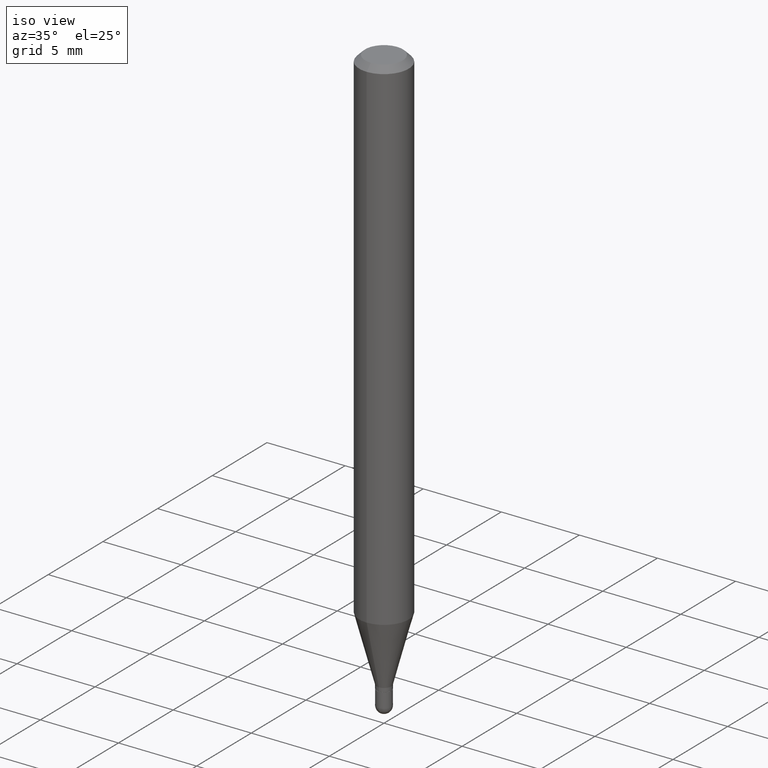
[diagram: clean part render]
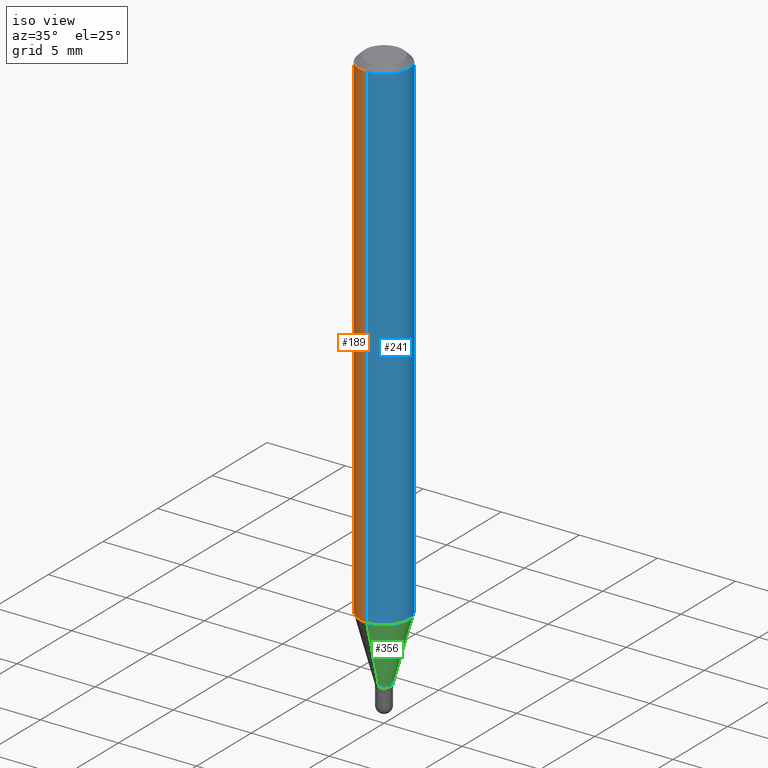
[diagram: same view with three faces highlighted in distinct colors, each labeled with its STEP entity id]
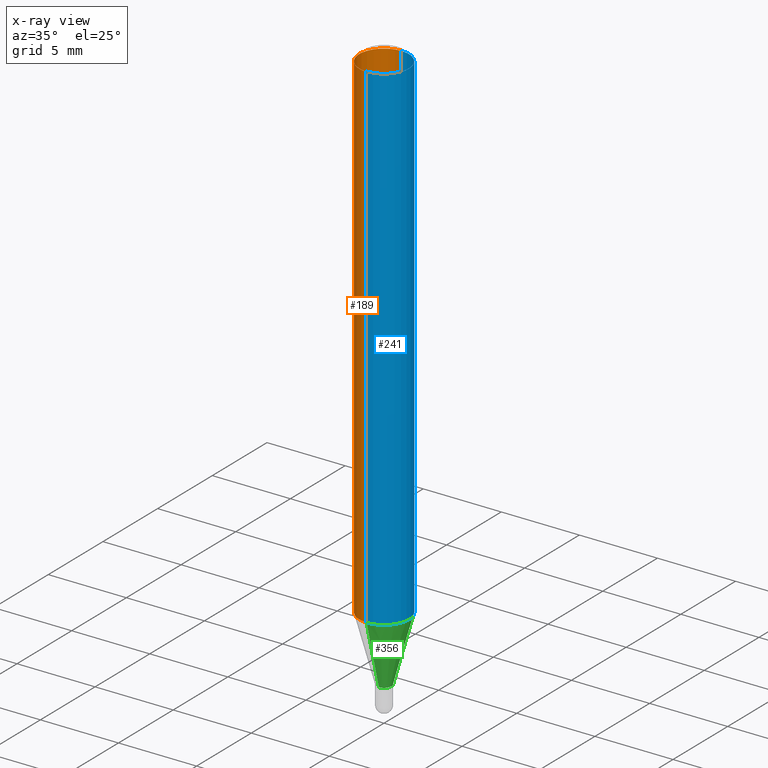
[diagram: x-ray of the same camera — body ghosted, the three highlighted faces saturated]
A machine part, iso view with three faces highlighted in distinct colors.
The next image is the same camera in x-ray (body ghosted, the three faces saturated) — at least one of them is partly hidden behind the body in this view.
Their STEP definitions:

[orange] entity #189 — the highlighted cylindrical surface (edge-blend (fillet) strip) has radius 1.5875 mm, axis along (-0, 0, 1).
#10 = VERTEX_POINT ( 'NONE', #57 ) ;
#57 = CARTESIAN_POINT ( 'NONE',  ( -4.364351673553912750E-16, -0.06250000000000005551, -0.01499999999999979128 ) ) ;
#72 = CARTESIAN_POINT ( 'NONE',  ( 4.440892098500937762E-16, 0.06249999999999993755, -0.01500000000000022669 ) ) ;
#75 = DIRECTION ( 'NONE',  ( -2.445484048547130509E-29, 3.491459510913228997E-15, 1.000000000000000000 ) ) ;
#77 = DIRECTION ( 'NONE',  ( -2.445484048547130229E-29, 3.491459510913228997E-15, 1.000000000000000000 ) ) ;
#101 = LINE ( 'NONE', #268, #104 ) ;
#104 = VECTOR ( 'NONE', #426, 39.37007874015748143 ) ;
#118 = CARTESIAN_POINT ( 'NONE',  ( -4.364351673553916201E-16, -0.06250000000000000000, 2.182162194320768123E-16 ) ) ;
#122 = ORIENTED_EDGE ( 'NONE', *, *, #134, .T. ) ;
#125 = CARTESIAN_POINT ( 'NONE',  ( 3.668226072820698461E-31, -5.237189266369846700E-17, -0.01500000000000000812 ) ) ;
#134 = EDGE_CURVE ( 'NONE', #353, #280, #298, .T. ) ;
#183 = CARTESIAN_POINT ( 'NONE',  ( -4.364351673553607559E-16, -0.06250000000000444089, -1.269789764466969340 ) ) ;
#187 = EDGE_CURVE ( 'NONE', #353, #243, #101, .T. ) ;
#189 = ADVANCED_FACE ( 'NONE', ( #270 ), #347, .T. ) ;
#202 = EDGE_LOOP ( 'NONE', ( #371, #122, #406, #400 ) ) ;
#231 = LINE ( 'NONE', #118, #283 ) ;
#237 = AXIS2_PLACEMENT_3D ( 'NONE', #257, #336, #290 ) ;
#243 = VERTEX_POINT ( 'NONE', #72 ) ;
#257 = CARTESIAN_POINT ( 'NONE',  ( 3.105250614012392213E-29, -4.433419550008470244E-15, -1.269789764466969562 ) ) ;
#266 = AXIS2_PLACEMENT_3D ( 'NONE', #125, #75, #339 ) ;
#268 = CARTESIAN_POINT ( 'NONE',  ( 4.440892098500625669E-16, 0.06250000000000000000, -2.182162194320768123E-16 ) ) ;
#270 = FACE_OUTER_BOUND ( 'NONE', #202, .T. ) ;
#280 = VERTEX_POINT ( 'NONE', #183 ) ;
#283 = VECTOR ( 'NONE', #77, 39.37007874015748143 ) ;
#290 = DIRECTION ( 'NONE',  ( -6.982962677686265922E-15, -1.000000000000000000, 4.370956789862821150E-15 ) ) ;
#298 = CIRCLE ( 'NONE', #237, 0.06250000000000000000 ) ;
#336 = DIRECTION ( 'NONE',  ( -2.445484048547130509E-29, 3.491459510913228997E-15, 1.000000000000000000 ) ) ;
#339 = DIRECTION ( 'NONE',  ( -6.982962677686265922E-15, -1.000000000000000000, 3.483106191921935554E-15 ) ) ;
#347 = CYLINDRICAL_SURFACE ( 'NONE', #412, 0.06250000000000000000 ) ;
#353 = VERTEX_POINT ( 'NONE', #439 ) ;
#371 = ORIENTED_EDGE ( 'NONE', *, *, #187, .F. ) ;
#381 = DIRECTION ( 'NONE',  ( -6.982962677686265922E-15, -1.000000000000000000, 3.491459510913228997E-15 ) ) ;
#400 = ORIENTED_EDGE ( 'NONE', *, *, #470, .F. ) ;
#406 = ORIENTED_EDGE ( 'NONE', *, *, #407, .T. ) ;
#407 = EDGE_CURVE ( 'NONE', #280, #10, #231, .T. ) ;
#412 = AXIS2_PLACEMENT_3D ( 'NONE', #504, #459, #381 ) ;
#426 = DIRECTION ( 'NONE',  ( -2.445484048547130229E-29, 3.491459510913228997E-15, 1.000000000000000000 ) ) ;
#439 = CARTESIAN_POINT ( 'NONE',  ( 4.440892098500933817E-16, 0.06249999999999555217, -1.269789764466970006 ) ) ;
#459 = DIRECTION ( 'NONE',  ( -2.445484048547130509E-29, 3.491459510913228997E-15, 1.000000000000000000 ) ) ;
#470 = EDGE_CURVE ( 'NONE', #243, #10, #496, .T. ) ;
#496 = CIRCLE ( 'NONE', #266, 0.06250000000000000000 ) ;
#504 = CARTESIAN_POINT ( 'NONE',  ( 0.000000000000000000, 0.000000000000000000, 0.000000000000000000 ) ) ;

[blue] entity #241 — the highlighted cylindrical surface (edge-blend (fillet) strip) has radius 1.5875 mm, axis along (-0, 0, 1).
#6 = ORIENTED_EDGE ( 'NONE', *, *, #407, .F. ) ;
#10 = VERTEX_POINT ( 'NONE', #57 ) ;
#22 = DIRECTION ( 'NONE',  ( -2.445484048547130509E-29, 3.491459510913228997E-15, 1.000000000000000000 ) ) ;
#35 = CARTESIAN_POINT ( 'NONE',  ( 0.000000000000000000, 0.000000000000000000, 0.000000000000000000 ) ) ;
#57 = CARTESIAN_POINT ( 'NONE',  ( -4.364351673553912750E-16, -0.06250000000000005551, -0.01499999999999979128 ) ) ;
#72 = CARTESIAN_POINT ( 'NONE',  ( 4.440892098500937762E-16, 0.06249999999999993755, -0.01500000000000022669 ) ) ;
#77 = DIRECTION ( 'NONE',  ( -2.445484048547130229E-29, 3.491459510913228997E-15, 1.000000000000000000 ) ) ;
#101 = LINE ( 'NONE', #268, #104 ) ;
#104 = VECTOR ( 'NONE', #426, 39.37007874015748143 ) ;
#106 = DIRECTION ( 'NONE',  ( -6.982962677686265922E-15, -1.000000000000000000, 3.483106191921935554E-15 ) ) ;
#110 = EDGE_CURVE ( 'NONE', #280, #353, #170, .T. ) ;
#118 = CARTESIAN_POINT ( 'NONE',  ( -4.364351673553916201E-16, -0.06250000000000000000, 2.182162194320768123E-16 ) ) ;
#128 = CARTESIAN_POINT ( 'NONE',  ( 3.105250614012392213E-29, -4.433419550008470244E-15, -1.269789764466969562 ) ) ;
#143 = DIRECTION ( 'NONE',  ( -2.445484048547130509E-29, 3.491459510913228997E-15, 1.000000000000000000 ) ) ;
#170 = CIRCLE ( 'NONE', #309, 0.06250000000000000000 ) ;
#174 = DIRECTION ( 'NONE',  ( -6.982962677686265922E-15, -1.000000000000000000, 4.370956789862821150E-15 ) ) ;
#183 = CARTESIAN_POINT ( 'NONE',  ( -4.364351673553607559E-16, -0.06250000000000444089, -1.269789764466969340 ) ) ;
#187 = EDGE_CURVE ( 'NONE', #353, #243, #101, .T. ) ;
#188 = CARTESIAN_POINT ( 'NONE',  ( 3.668226072820698461E-31, -5.237189266369846700E-17, -0.01500000000000000812 ) ) ;
#211 = EDGE_CURVE ( 'NONE', #10, #243, #299, .T. ) ;
#224 = CYLINDRICAL_SURFACE ( 'NONE', #438, 0.06250000000000000000 ) ;
#230 = ORIENTED_EDGE ( 'NONE', *, *, #187, .T. ) ;
#231 = LINE ( 'NONE', #118, #283 ) ;
#234 = ORIENTED_EDGE ( 'NONE', *, *, #110, .T. ) ;
#241 = ADVANCED_FACE ( 'NONE', ( #471 ), #224, .T. ) ;
#243 = VERTEX_POINT ( 'NONE', #72 ) ;
#247 = ORIENTED_EDGE ( 'NONE', *, *, #211, .F. ) ;
#267 = EDGE_LOOP ( 'NONE', ( #234, #230, #247, #6 ) ) ;
#268 = CARTESIAN_POINT ( 'NONE',  ( 4.440892098500625669E-16, 0.06250000000000000000, -2.182162194320768123E-16 ) ) ;
#280 = VERTEX_POINT ( 'NONE', #183 ) ;
#283 = VECTOR ( 'NONE', #77, 39.37007874015748143 ) ;
#299 = CIRCLE ( 'NONE', #403, 0.06250000000000000000 ) ;
#306 = DIRECTION ( 'NONE',  ( -2.445484048547130509E-29, 3.491459510913228997E-15, 1.000000000000000000 ) ) ;
#309 = AXIS2_PLACEMENT_3D ( 'NONE', #128, #22, #174 ) ;
#353 = VERTEX_POINT ( 'NONE', #439 ) ;
#403 = AXIS2_PLACEMENT_3D ( 'NONE', #188, #143, #106 ) ;
#407 = EDGE_CURVE ( 'NONE', #280, #10, #231, .T. ) ;
#426 = DIRECTION ( 'NONE',  ( -2.445484048547130229E-29, 3.491459510913228997E-15, 1.000000000000000000 ) ) ;
#438 = AXIS2_PLACEMENT_3D ( 'NONE', #35, #306, #462 ) ;
#439 = CARTESIAN_POINT ( 'NONE',  ( 4.440892098500933817E-16, 0.06249999999999555217, -1.269789764466970006 ) ) ;
#462 = DIRECTION ( 'NONE',  ( -6.982962677686265922E-15, -1.000000000000000000, 3.491459510913228997E-15 ) ) ;
#471 = FACE_OUTER_BOUND ( 'NONE', #267, .T. ) ;

[green] entity #356 — the highlighted conical surface has half-angle 15 deg.
#7 = LINE ( 'NONE', #441, #89 ) ;
#9 = CARTESIAN_POINT ( 'NONE',  ( 3.506824125616585168E-29, -5.006752938649570137E-15, -1.434000000000000163 ) ) ;
#22 = DIRECTION ( 'NONE',  ( -2.445484048547130509E-29, 3.491459510913228997E-15, 1.000000000000000000 ) ) ;
#41 = VERTEX_POINT ( 'NONE', #457 ) ;
#68 = ORIENTED_EDGE ( 'NONE', *, *, #477, .T. ) ;
#89 = VECTOR ( 'NONE', #324, 39.37007874015749564 ) ;
#110 = EDGE_CURVE ( 'NONE', #280, #353, #170, .T. ) ;
#116 = FACE_OUTER_BOUND ( 'NONE', #200, .T. ) ;
#123 = DIRECTION ( 'NONE',  ( -2.445484048547130509E-29, 3.491459510913228997E-15, 1.000000000000000000 ) ) ;
#128 = CARTESIAN_POINT ( 'NONE',  ( 3.105250614012392213E-29, -4.433419550008470244E-15, -1.269789764466969562 ) ) ;
#132 = CARTESIAN_POINT ( 'NONE',  ( -1.291848095371603260E-16, -0.01850000000000492917, -1.434000000000000163 ) ) ;
#141 = ORIENTED_EDGE ( 'NONE', *, *, #378, .F. ) ;
#155 = VERTEX_POINT ( 'NONE', #132 ) ;
#163 = CARTESIAN_POINT ( 'NONE',  ( 3.506824125616585168E-29, -5.006752938649570137E-15, -1.434000000000000163 ) ) ;
#170 = CIRCLE ( 'NONE', #309, 0.06250000000000000000 ) ;
#174 = DIRECTION ( 'NONE',  ( -6.982962677686265922E-15, -1.000000000000000000, 4.370956789862821150E-15 ) ) ;
#183 = CARTESIAN_POINT ( 'NONE',  ( -4.364351673553607559E-16, -0.06250000000000444089, -1.269789764466969340 ) ) ;
#200 = EDGE_LOOP ( 'NONE', ( #232, #68, #355, #141 ) ) ;
#208 = LINE ( 'NONE', #405, #465 ) ;
#232 = ORIENTED_EDGE ( 'NONE', *, *, #362, .T. ) ;
#235 = DIRECTION ( 'NONE',  ( -6.982962677686265922E-15, -1.000000000000000000, 0.000000000000000000 ) ) ;
#248 = CONICAL_SURFACE ( 'NONE', #317, 0.01849999999999992276, 0.2617993877991501850 ) ;
#276 = DIRECTION ( 'NONE',  ( -6.982962677686265922E-15, -1.000000000000000000, 0.000000000000000000 ) ) ;
#280 = VERTEX_POINT ( 'NONE', #183 ) ;
#309 = AXIS2_PLACEMENT_3D ( 'NONE', #128, #22, #174 ) ;
#317 = AXIS2_PLACEMENT_3D ( 'NONE', #163, #123, #235 ) ;
#324 = DIRECTION ( 'NONE',  ( -1.807323732225329350E-15, -0.2588190451025180194, 0.9659258262890689783 ) ) ;
#353 = VERTEX_POINT ( 'NONE', #439 ) ;
#355 = ORIENTED_EDGE ( 'NONE', *, *, #110, .F. ) ;
#356 = ADVANCED_FACE ( 'NONE', ( #116 ), #248, .T. ) ;
#362 = EDGE_CURVE ( 'NONE', #155, #41, #455, .T. ) ;
#378 = EDGE_CURVE ( 'NONE', #155, #280, #7, .T. ) ;
#393 = DIRECTION ( 'NONE',  ( -2.445484048547130509E-29, 3.491459510913228997E-15, 1.000000000000000000 ) ) ;
#405 = CARTESIAN_POINT ( 'NONE',  ( 1.314504061156530405E-16, 0.01849999999999491634, -1.434000000000000163 ) ) ;
#439 = CARTESIAN_POINT ( 'NONE',  ( 4.440892098500933817E-16, 0.06249999999999555217, -1.269789764466970006 ) ) ;
#441 = CARTESIAN_POINT ( 'NONE',  ( -1.291848095371603260E-16, -0.01850000000000492917, -1.434000000000000163 ) ) ;
#455 = CIRCLE ( 'NONE', #508, 0.01849999999999992276 ) ;
#457 = CARTESIAN_POINT ( 'NONE',  ( 2.877698079828734700E-16, 0.01849999999999491634, -1.434000000000000163 ) ) ;
#465 = VECTOR ( 'NONE', #500, 39.37007874015748143 ) ;
#477 = EDGE_CURVE ( 'NONE', #41, #353, #208, .T. ) ;
#500 = DIRECTION ( 'NONE',  ( 1.839019923739599526E-15, 0.2588190451025248473, 0.9659258262890670910 ) ) ;
#508 = AXIS2_PLACEMENT_3D ( 'NONE', #9, #393, #276 ) ;